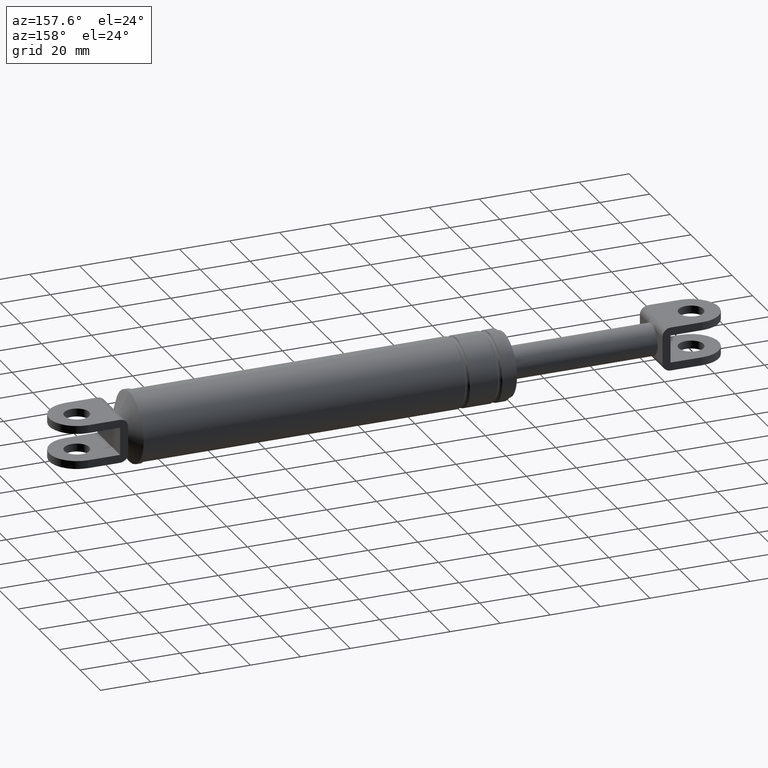
[diagram: clean part render]
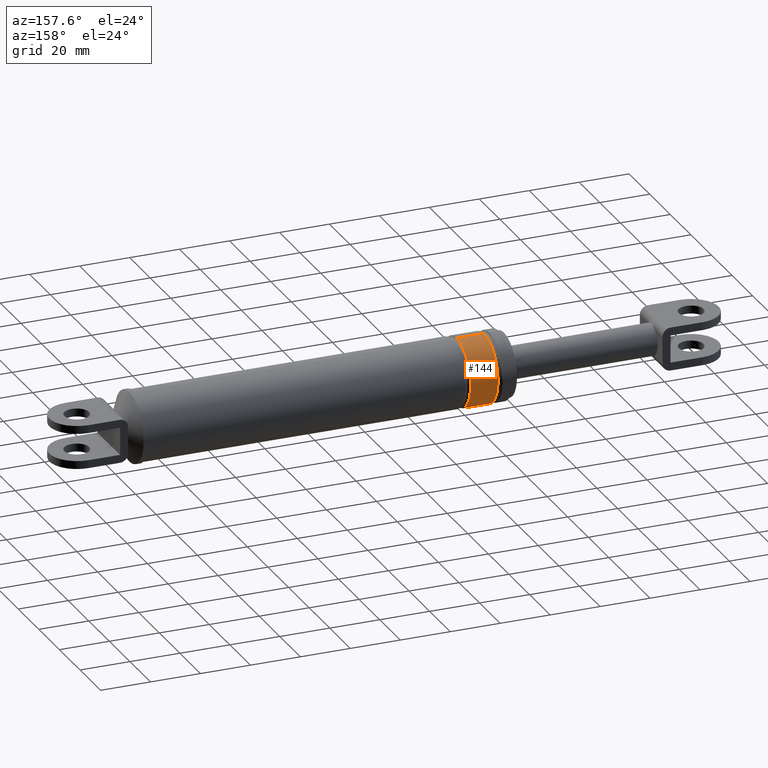
[diagram: same view with one face highlighted and labeled with its STEP entity id]
A machine part, auxiliary view. The second image highlights one B-rep face of the part: STEP entity #144.
In plain terms, the highlighted cylindrical surface (partial cylindrical patch) has radius 13.7 mm, axis along (-1, 0, 0).
Its self-contained STEP definition (entity closure, byte-faithful):
#144=ADVANCED_FACE('',(#503),#502,.T.);
#502=CYLINDRICAL_SURFACE('',#1477,1.37000000000E+001);
#503=FACE_OUTER_BOUND('',#1478,.T.);
#1474=CARTESIAN_POINT('',(1.71231797029E+002,6.37158320696E-015,1.19820542859E+002));
#1475=DIRECTION('',(-1.00000000000E+000,1.46694769862E-015,3.54452212500E-031));
#1476=DIRECTION('',(1.03669887834E-030,4.65079066202E-016,1.00000000000E+000));
#1477=AXIS2_PLACEMENT_3D('',#1474,#1475,#1476);
#1478=EDGE_LOOP('',(#2125,#2126,#2127,#2128));
#2125=ORIENTED_EDGE('',*,*,#2360,.F.);
#2126=ORIENTED_EDGE('',*,*,#2363,.F.);
#2127=ORIENTED_EDGE('',*,*,#2364,.T.);
#2128=ORIENTED_EDGE('',*,*,#2365,.T.);
#2360=EDGE_CURVE('',#2957,#2964,#2965,.T.);
#2363=EDGE_CURVE('',#2983,#2957,#2984,.T.);
#2364=EDGE_CURVE('',#2983,#2990,#2991,.T.);
#2365=EDGE_CURVE('',#2990,#2964,#2997,.T.);
#2957=VERTEX_POINT('',#3801);
#2964=VERTEX_POINT('',#3807);
#2965=CIRCLE('',#3811,1.37000000000E+001);
#2983=VERTEX_POINT('',#3823);
#2984=(BOUNDED_CURVE() B_SPLINE_CURVE(1,(#3824,#3825),.UNSPECIFIED.,.F.,.F.) B_SPLINE_CURVE_WITH_KNOTS((2,2),(8.33333343261E-002,9.16666667006E-001),.UNSPECIFIED.) CURVE() GEOMETRIC_REPRESENTATION_ITEM() RATIONAL_B_SPLINE_CURVE((1.00000000000E+000,1.00000000000E+000)) REPRESENTATION_ITEM('') );
#2990=VERTEX_POINT('',#3826);
#2991=CIRCLE('',#3830,1.37000000000E+001);
#2997=(BOUNDED_CURVE() B_SPLINE_CURVE(1,(#3831,#3832),.UNSPECIFIED.,.F.,.F.) B_SPLINE_CURVE_WITH_KNOTS((2,2),(8.33333333333E-002,9.16666666667E-001),.UNSPECIFIED.) CURVE() GEOMETRIC_REPRESENTATION_ITEM() RATIONAL_B_SPLINE_CURVE((7.50000000000E-001,7.50000000000E-001)) REPRESENTATION_ITEM('') );
#3801=CARTESIAN_POINT('',(1.72331797029E+002,2.30926389122E-014,1.33520542859E+002));
#3807=CARTESIAN_POINT('',(1.72331797029E+002,7.52689430633E-015,1.06120542859E+002));
#3808=CARTESIAN_POINT('',(1.72331797029E+002,1.12117697108E-014,1.19820542859E+002));
#3809=DIRECTION('',(-1.00000000000E+000,0.00000000000E+000,0.00000000000E+000));
#3810=DIRECTION('',(-0.00000000000E+000,-8.35518852861E-016,-1.00000000000E+000));
#3811=AXIS2_PLACEMENT_3D('',#3808,#3809,#3810);
#3823=CARTESIAN_POINT('',(1.83331797029E+002,-5.32907051820E-015,1.33520542859E+002));
#3824=CARTESIAN_POINT('',(1.83331797016E+002,-5.00690072020E-015,1.33520542859E+002));
#3825=CARTESIAN_POINT('',(1.72331797024E+002,1.11295239520E-014,1.33520542859E+002));
#3826=CARTESIAN_POINT('',(1.83331797029E+002,7.52689430633E-015,1.06120542859E+002));
#3827=CARTESIAN_POINT('',(1.83331797029E+002,1.12117697108E-014,1.19820542859E+002));
#3828=DIRECTION('',(-1.00000000000E+000,1.46694769862E-015,1.38016011913E-030));
#3829=DIRECTION('',(-2.60582257749E-030,-8.35518852861E-016,-1.00000000000E+000));
#3830=AXIS2_PLACEMENT_3D('',#3827,#3828,#3829);
#3831=CARTESIAN_POINT('',(1.83331797029E+002,-1.85037170771E-014,1.06120542859E+002));
#3832=CARTESIAN_POINT('',(1.72331797029E+002,-2.22044604925E-015,1.06120542859E+002));